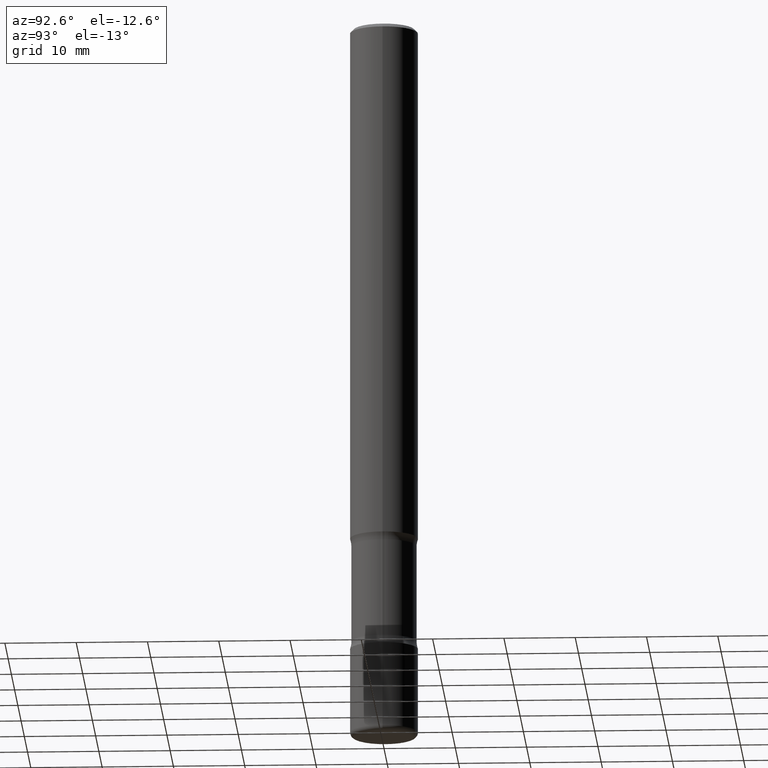
[diagram: clean part render]
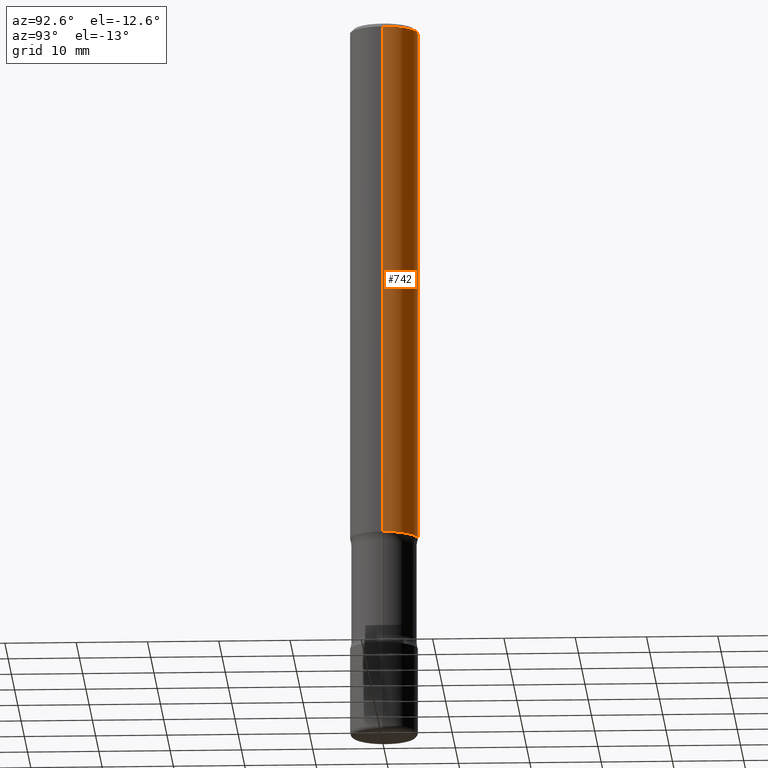
[diagram: same view with one face highlighted and labeled with its STEP entity id]
A machine part, auxiliary view. The second image highlights one B-rep face of the part: STEP entity #742.
In plain terms, the highlighted cylindrical surface (edge-blend (fillet) strip) has radius 4.7625 mm, axis along (-0, 0, 1).
Its self-contained STEP definition (entity closure, byte-faithful):
#8 = CARTESIAN_POINT ( 'NONE',  ( 4.890937612370283668E-31, -6.982962677686305168E-17, -0.02000000000000004205 ) ) ;
#21 = EDGE_CURVE ( 'NONE', #783, #717, #381, .T. ) ;
#70 = AXIS2_PLACEMENT_3D ( 'NONE', #487, #74, #505 ) ;
#74 = DIRECTION ( 'NONE',  ( -2.445468806185136597E-29, 3.491481338843145583E-15, 1.000000000000000000 ) ) ;
#83 = DIRECTION ( 'NONE',  ( -2.445468806185136597E-29, 3.491481338843145583E-15, 1.000000000000000000 ) ) ;
#88 = VERTEX_POINT ( 'NONE', #380 ) ;
#91 = EDGE_LOOP ( 'NONE', ( #268, #525, #596, #293 ) ) ;
#127 = EDGE_CURVE ( 'NONE', #717, #408, #753, .T. ) ;
#130 = DIRECTION ( 'NONE',  ( -2.445468806185136597E-29, 3.491481338843145583E-15, 1.000000000000000000 ) ) ;
#150 = DIRECTION ( 'NONE',  ( 1.000000000000000000, -6.982962677686265922E-15, 4.876176775795935793E-29 ) ) ;
#264 = VECTOR ( 'NONE', #439, 39.37007874015748143 ) ;
#268 = ORIENTED_EDGE ( 'NONE', *, *, #21, .T. ) ;
#274 = CYLINDRICAL_SURFACE ( 'NONE', #436, 0.1874999999999999167 ) ;
#287 = CARTESIAN_POINT ( 'NONE',  ( -0.1874999999999998057, 1.239475875289310527E-15, -0.02000000000000004205 ) ) ;
#293 = ORIENTED_EDGE ( 'NONE', *, *, #544, .F. ) ;
#317 = AXIS2_PLACEMENT_3D ( 'NONE', #8, #130, #378 ) ;
#329 = VECTOR ( 'NONE', #433, 39.37007874015748143 ) ;
#338 = CARTESIAN_POINT ( 'NONE',  ( 0.000000000000000000, 0.000000000000000000, 0.000000000000000000 ) ) ;
#345 = CIRCLE ( 'NONE', #317, 0.1874999999999998057 ) ;
#372 = CARTESIAN_POINT ( 'NONE',  ( 0.1874999999999999167, -1.309305502066174219E-15, 9.142831454617375408E-30 ) ) ;
#378 = DIRECTION ( 'NONE',  ( 1.000000000000000000, -6.982962677686266711E-15, 0.000000000000000000 ) ) ;
#380 = CARTESIAN_POINT ( 'NONE',  ( 0.1874999999999998057, -1.356173001359023888E-15, -0.02000000000000004205 ) ) ;
#381 = CIRCLE ( 'NONE', #70, 0.1875000000000000278 ) ;
#408 = VERTEX_POINT ( 'NONE', #287 ) ;
#433 = DIRECTION ( 'NONE',  ( -2.445468806185136877E-29, 3.491481338843145188E-15, 1.000000000000000000 ) ) ;
#436 = AXIS2_PLACEMENT_3D ( 'NONE', #338, #83, #150 ) ;
#439 = DIRECTION ( 'NONE',  ( -2.445468806185136877E-29, 3.491481338843145188E-15, 1.000000000000000000 ) ) ;
#444 = CARTESIAN_POINT ( 'NONE',  ( -0.1874999999999999167, 1.332267629550187257E-15, -9.223003294227943787E-30 ) ) ;
#459 = FACE_OUTER_BOUND ( 'NONE', #91, .T. ) ;
#470 = CARTESIAN_POINT ( 'NONE',  ( -0.1874999999999999722, -3.721651608425263776E-15, -2.875000000000000000 ) ) ;
#487 = CARTESIAN_POINT ( 'NONE',  ( 7.030722817782267716E-29, -1.003800884917404311E-14, -2.875000000000000000 ) ) ;
#505 = DIRECTION ( 'NONE',  ( 1.000000000000000000, -6.982962677686261189E-15, 0.000000000000000000 ) ) ;
#525 = ORIENTED_EDGE ( 'NONE', *, *, #127, .T. ) ;
#544 = EDGE_CURVE ( 'NONE', #783, #88, #699, .T. ) ;
#596 = ORIENTED_EDGE ( 'NONE', *, *, #605, .F. ) ;
#605 = EDGE_CURVE ( 'NONE', #88, #408, #345, .T. ) ;
#699 = LINE ( 'NONE', #372, #329 ) ;
#717 = VERTEX_POINT ( 'NONE', #470 ) ;
#742 = ADVANCED_FACE ( 'NONE', ( #459 ), #274, .T. ) ;
#753 = LINE ( 'NONE', #444, #264 ) ;
#765 = CARTESIAN_POINT ( 'NONE',  ( 0.1875000000000000278, -1.134731435124021811E-14, -2.875000000000000000 ) ) ;
#783 = VERTEX_POINT ( 'NONE', #765 ) ;